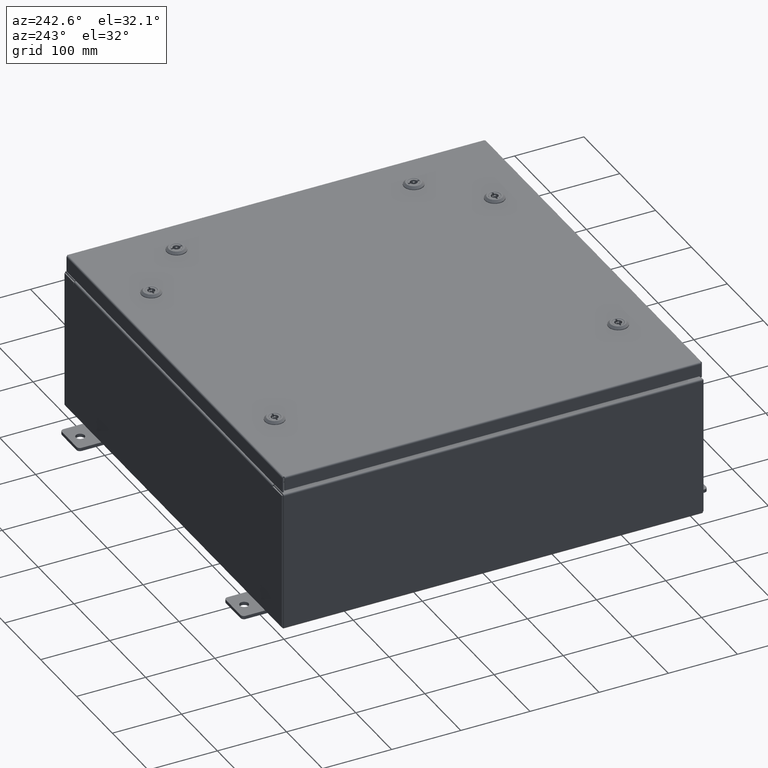
[diagram: clean part render]
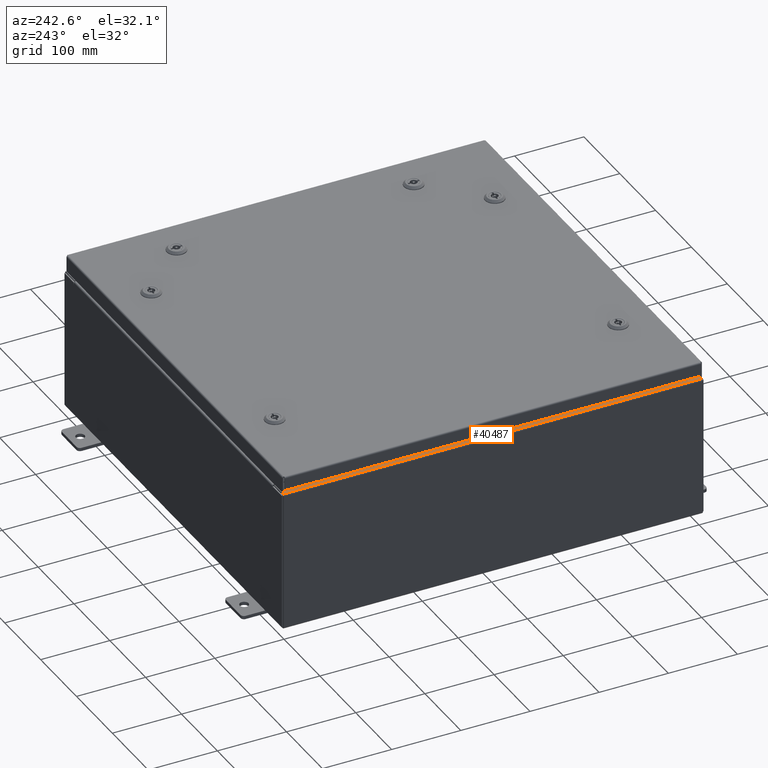
[diagram: same view with one face highlighted and labeled with its STEP entity id]
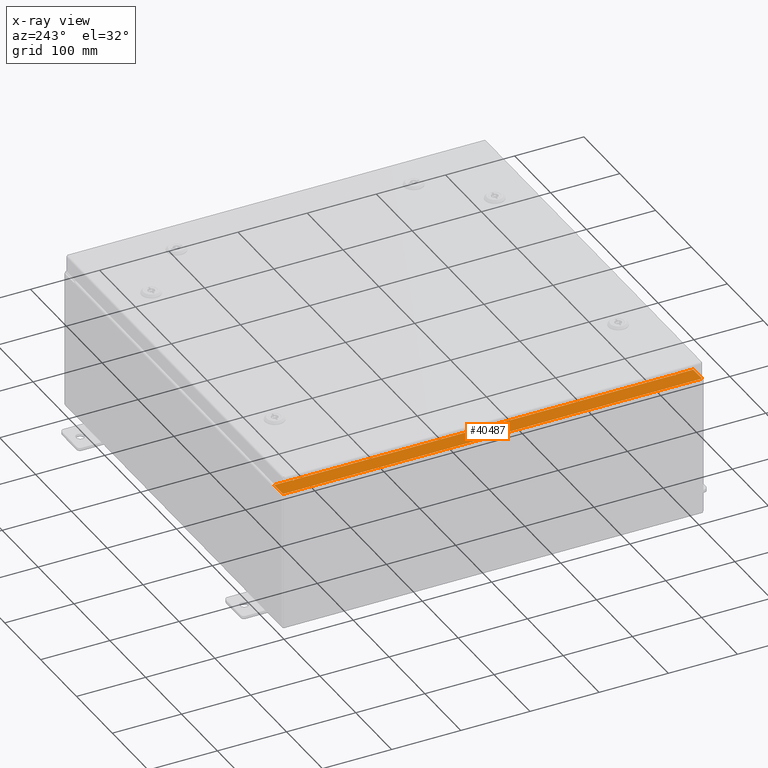
[diagram: x-ray of the same camera — body ghosted, the highlighted face saturated]
A machine part, auxiliary view. The second image highlights one B-rep face of the part: STEP entity #40487.
The next image is the same camera in x-ray: the body ghosted, the highlighted face saturated — about 0% of this face is hidden behind the body in this view.
In plain terms, the highlighted planar face has unit normal (0, 0, -1).
Its self-contained STEP definition (entity closure, byte-faithful):
#825 = CARTESIAN_POINT ( 'NONE',  ( -11.91230000000003200, 11.92529999999999800, 7.925300000000000000 ) ) ;
#1380 = LINE ( 'NONE', #21881, #38984 ) ;
#2354 = CARTESIAN_POINT ( 'NONE',  ( -5.352210493322583500E-014, 0.0000000000000000000, 7.925300000000079900 ) ) ;
#3635 = ORIENTED_EDGE ( 'NONE', *, *, #24674, .F. ) ;
#4844 = ORIENTED_EDGE ( 'NONE', *, *, #54117, .T. ) ;
#5465 = EDGE_CURVE ( 'NONE', #45639, #22580, #47727, .T. ) ;
#7258 = PLANE ( 'NONE',  #16725 ) ;
#7283 = CARTESIAN_POINT ( 'NONE',  ( -10.94970000000003000, 10.88110000000000000, 7.925300000000006200 ) ) ;
#9747 = CARTESIAN_POINT ( 'NONE',  ( -10.96270000000003200, -10.84374999999998800, 7.925300000000006200 ) ) ;
#10963 = EDGE_CURVE ( 'NONE', #32960, #45639, #46232, .T. ) ;
#11094 = VERTEX_POINT ( 'NONE', #35204 ) ;
#11706 = VERTEX_POINT ( 'NONE', #825 ) ;
#11773 = CIRCLE ( 'NONE', #55580, 0.01867499999999949400 ) ;
#11944 = DIRECTION ( 'NONE',  ( 1.000000000000000000, 0.0000000000000000000, 0.0000000000000000000 ) ) ;
#12472 = VERTEX_POINT ( 'NONE', #12625 ) ;
#12625 = CARTESIAN_POINT ( 'NONE',  ( -11.91230000000003200, -11.92530000000000000, 7.925300000000000000 ) ) ;
#13732 = ORIENTED_EDGE ( 'NONE', *, *, #39116, .T. ) ;
#13742 = VECTOR ( 'NONE', #37495, 39.37007874015748100 ) ;
#13770 = CARTESIAN_POINT ( 'NONE',  ( -11.00005000000003000, 10.84374999999999800, 7.925300000000005300 ) ) ;
#14342 = EDGE_CURVE ( 'NONE', #12472, #11706, #28352, .T. ) ;
#15055 = LINE ( 'NONE', #19904, #28146 ) ;
#15115 = DIRECTION ( 'NONE',  ( -6.720413268546770800E-015, -0.0000000000000000000, 1.000000000000000000 ) ) ;
#16114 = VERTEX_POINT ( 'NONE', #7283 ) ;
#16444 = LINE ( 'NONE', #19186, #54049 ) ;
#16532 = CARTESIAN_POINT ( 'NONE',  ( -11.00005000000003000, -10.88109999999998800, 7.925300000000005300 ) ) ;
#16725 = AXIS2_PLACEMENT_3D ( 'NONE', #2354, #51427, #22037 ) ;
#17427 = DIRECTION ( 'NONE',  ( 0.0000000000000000000, 1.000000000000000000, 0.0000000000000000000 ) ) ;
#19186 = CARTESIAN_POINT ( 'NONE',  ( -10.96270000000003200, -10.84374999999998800, 7.925300000000006200 ) ) ;
#19310 = DIRECTION ( 'NONE',  ( -6.720413268546770800E-015, -0.0000000000000000000, 1.000000000000000000 ) ) ;
#19669 = ORIENTED_EDGE ( 'NONE', *, *, #53412, .F. ) ;
#19904 = CARTESIAN_POINT ( 'NONE',  ( -10.94970000000003000, 10.88110000000000000, 7.925300000000006200 ) ) ;
#21881 = CARTESIAN_POINT ( 'NONE',  ( -10.94970000000003000, 0.0000000000000000000, 7.925300000000006200 ) ) ;
#22037 = DIRECTION ( 'NONE',  ( -1.000000000000000000, 0.0000000000000000000, -6.720413268546771600E-015 ) ) ;
#22047 = AXIS2_PLACEMENT_3D ( 'NONE', #48727, #19310, #53636 ) ;
#22580 = VERTEX_POINT ( 'NONE', #28277 ) ;
#22647 = CARTESIAN_POINT ( 'NONE',  ( -11.91230000000003200, 11.92529999999999800, 7.925300000000000000 ) ) ;
#23034 = CARTESIAN_POINT ( 'NONE',  ( -10.94970000000003000, 11.92529999999999800, 7.925300000000006200 ) ) ;
#24114 = DIRECTION ( 'NONE',  ( -1.000000000000000000, 0.0000000000000000000, 0.0000000000000000000 ) ) ;
#24674 = EDGE_CURVE ( 'NONE', #22580, #53709, #28719, .T. ) ;
#25327 = LINE ( 'NONE', #58741, #49890 ) ;
#26855 = DIRECTION ( 'NONE',  ( 0.0000000000000000000, 1.000000000000000000, 0.0000000000000000000 ) ) ;
#27838 = CARTESIAN_POINT ( 'NONE',  ( -11.00005000000003000, -10.88109999999998800, 7.925300000000006200 ) ) ;
#28146 = VECTOR ( 'NONE', #54232, 39.37007874015748100 ) ;
#28277 = CARTESIAN_POINT ( 'NONE',  ( -10.96270000000003200, 10.84374999999999800, 7.925300000000006200 ) ) ;
#28352 = LINE ( 'NONE', #22647, #13742 ) ;
#28719 = LINE ( 'NONE', #34213, #50187 ) ;
#29977 = ORIENTED_EDGE ( 'NONE', *, *, #54860, .F. ) ;
#29985 = ORIENTED_EDGE ( 'NONE', *, *, #41864, .F. ) ;
#31790 = EDGE_CURVE ( 'NONE', #12472, #36980, #61357, .T. ) ;
#32064 = CARTESIAN_POINT ( 'NONE',  ( -10.94970000000003000, 0.0000000000000000000, 7.925300000000006200 ) ) ;
#32960 = VERTEX_POINT ( 'NONE', #56379 ) ;
#34213 = CARTESIAN_POINT ( 'NONE',  ( -10.96270000000003200, 10.84374999999999600, 7.925300000000006200 ) ) ;
#34398 = ORIENTED_EDGE ( 'NONE', *, *, #31790, .T. ) ;
#35204 = CARTESIAN_POINT ( 'NONE',  ( -10.94970000000003000, -10.88109999999998400, 7.925300000000006200 ) ) ;
#35662 = LINE ( 'NONE', #27838, #61762 ) ;
#36980 = VERTEX_POINT ( 'NONE', #42264 ) ;
#37495 = DIRECTION ( 'NONE',  ( -0.0000000000000000000, 1.000000000000000000, -0.0000000000000000000 ) ) ;
#38984 = VECTOR ( 'NONE', #26855, 39.37007874015748100 ) ;
#39116 = EDGE_CURVE ( 'NONE', #16114, #50903, #1380, .T. ) ;
#39778 = CARTESIAN_POINT ( 'NONE',  ( -5.352210493322583500E-014, -11.92530000000000000, 7.925300000000079900 ) ) ;
#40487 = ADVANCED_FACE ( 'NONE', ( #55091 ), #7258, .F. ) ;
#41596 = VECTOR ( 'NONE', #11944, 39.37007874015748100 ) ;
#41799 = VECTOR ( 'NONE', #17427, 39.37007874015748100 ) ;
#41864 = EDGE_CURVE ( 'NONE', #16114, #32960, #15055, .T. ) ;
#42264 = CARTESIAN_POINT ( 'NONE',  ( -10.94970000000003000, -11.92530000000000000, 7.925300000000006200 ) ) ;
#42650 = CARTESIAN_POINT ( 'NONE',  ( -11.00005000000003000, 10.84374999999999800, 7.925300000000006200 ) ) ;
#44436 = DIRECTION ( 'NONE',  ( -1.000000000000000000, 0.0000000000000000000, -6.720413268546771600E-015 ) ) ;
#44562 = CARTESIAN_POINT ( 'NONE',  ( -11.00005000000003000, -10.86242499999998800, 7.925300000000006200 ) ) ;
#44711 = DIRECTION ( 'NONE',  ( 1.000000000000000000, -0.0000000000000000000, 6.720413268546771600E-015 ) ) ;
#45137 = EDGE_LOOP ( 'NONE', ( #29985, #13732, #62614, #62174, #34398, #4844, #19669, #29977, #47499, #3635, #47397, #58678 ) ) ;
#45639 = VERTEX_POINT ( 'NONE', #13770 ) ;
#46232 = CIRCLE ( 'NONE', #22047, 0.01867499999999949400 ) ;
#46622 = VERTEX_POINT ( 'NONE', #16532 ) ;
#47397 = ORIENTED_EDGE ( 'NONE', *, *, #5465, .F. ) ;
#47499 = ORIENTED_EDGE ( 'NONE', *, *, #53615, .F. ) ;
#47727 = LINE ( 'NONE', #42650, #41596 ) ;
#48307 = VECTOR ( 'NONE', #44711, 39.37007874015748100 ) ;
#48727 = CARTESIAN_POINT ( 'NONE',  ( -11.00005000000003000, 10.86242499999999800, 7.925300000000006200 ) ) ;
#49466 = DIRECTION ( 'NONE',  ( 1.000000000000000000, 0.0000000000000000000, 0.0000000000000000000 ) ) ;
#49890 = VECTOR ( 'NONE', #44436, 39.37007874015748100 ) ;
#49993 = VERTEX_POINT ( 'NONE', #60318 ) ;
#50187 = VECTOR ( 'NONE', #63559, 39.37007874015748100 ) ;
#50421 = EDGE_CURVE ( 'NONE', #50903, #11706, #25327, .T. ) ;
#50903 = VERTEX_POINT ( 'NONE', #23034 ) ;
#51427 = DIRECTION ( 'NONE',  ( 6.720413268546771600E-015, 0.0000000000000000000, -1.000000000000000000 ) ) ;
#52251 = DIRECTION ( 'NONE',  ( 1.000000000000000000, 0.0000000000000000000, 0.0000000000000000000 ) ) ;
#53412 = EDGE_CURVE ( 'NONE', #46622, #11094, #35662, .T. ) ;
#53615 = EDGE_CURVE ( 'NONE', #53709, #49993, #16444, .T. ) ;
#53636 = DIRECTION ( 'NONE',  ( 1.000000000000000000, 0.0000000000000000000, 0.0000000000000000000 ) ) ;
#53709 = VERTEX_POINT ( 'NONE', #9747 ) ;
#54049 = VECTOR ( 'NONE', #24114, 39.37007874015748100 ) ;
#54117 = EDGE_CURVE ( 'NONE', #36980, #11094, #57841, .T. ) ;
#54232 = DIRECTION ( 'NONE',  ( -1.000000000000000000, -4.340572780400098900E-014, 0.0000000000000000000 ) ) ;
#54860 = EDGE_CURVE ( 'NONE', #49993, #46622, #11773, .T. ) ;
#55091 = FACE_OUTER_BOUND ( 'NONE', #45137, .T. ) ;
#55580 = AXIS2_PLACEMENT_3D ( 'NONE', #44562, #15115, #49466 ) ;
#56379 = CARTESIAN_POINT ( 'NONE',  ( -11.00005000000003000, 10.88109999999999800, 7.925300000000005300 ) ) ;
#57841 = LINE ( 'NONE', #32064, #41799 ) ;
#58678 = ORIENTED_EDGE ( 'NONE', *, *, #10963, .F. ) ;
#58741 = CARTESIAN_POINT ( 'NONE',  ( -5.352210493322583500E-014, 11.92529999999999800, 7.925300000000079900 ) ) ;
#60318 = CARTESIAN_POINT ( 'NONE',  ( -11.00005000000003000, -10.84374999999998800, 7.925300000000005300 ) ) ;
#61357 = LINE ( 'NONE', #39778, #48307 ) ;
#61762 = VECTOR ( 'NONE', #52251, 39.37007874015748100 ) ;
#62174 = ORIENTED_EDGE ( 'NONE', *, *, #14342, .F. ) ;
#62614 = ORIENTED_EDGE ( 'NONE', *, *, #50421, .T. ) ;
#63559 = DIRECTION ( 'NONE',  ( -0.0000000000000000000, -1.000000000000000000, -0.0000000000000000000 ) ) ;